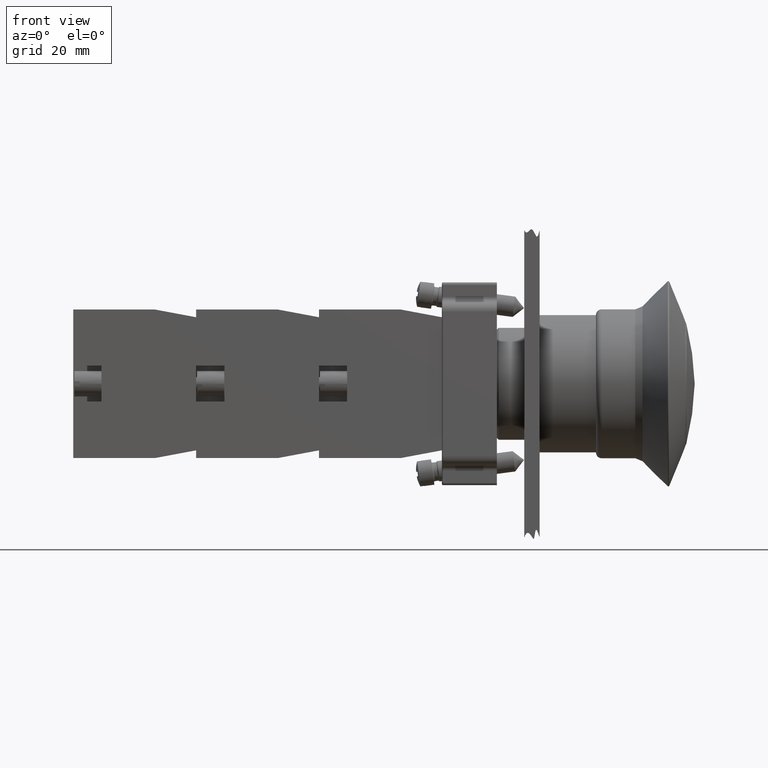
[diagram: clean part render]
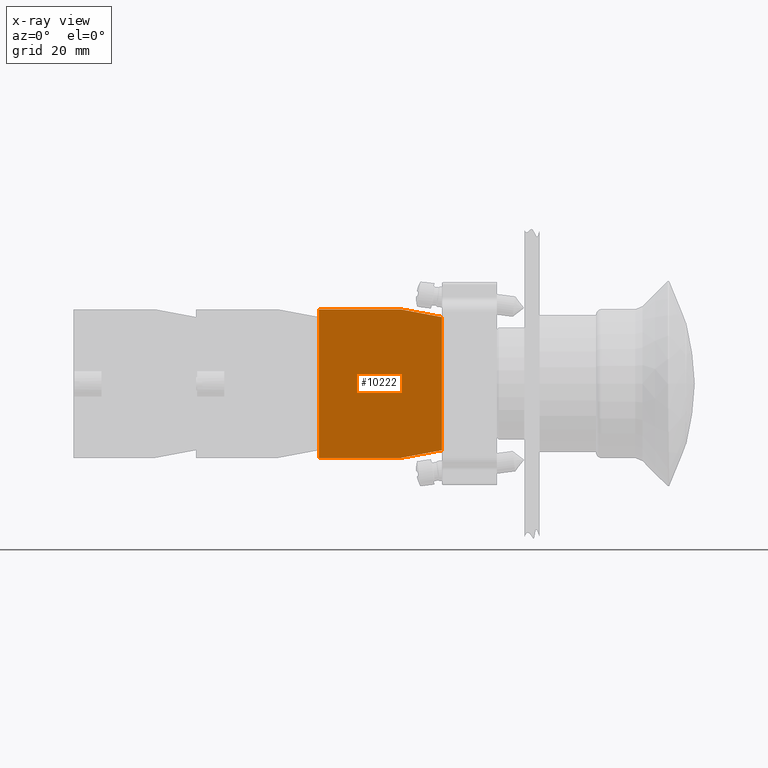
[diagram: x-ray — body ghosted, one internal face saturated and labeled with its STEP entity id]
A machine part, front view, then the same camera in x-ray: the body is ghosted and one INTERNAL B-rep face — a face not visible from any outside direction — is saturated and labeled: STEP entity #10222.
In plain terms, the highlighted planar face has unit normal (-0, 1, 0).
Its self-contained STEP definition (entity closure, byte-faithful):
#8527=CARTESIAN_POINT('',(-44.936741828918471,23.797073323279623,0.0));
#8528=VERTEX_POINT('',#8527);
#8535=CARTESIAN_POINT('',(-44.936741828918457,7.797073323279626,0.0));
#8536=VERTEX_POINT('',#8535);
#8537=CARTESIAN_POINT('',(-44.936741828918457,7.797073323279626,0.0));
#8538=DIRECTION('',(0.0,1.0,0.0));
#8539=VECTOR('',#8538,15.999999999999996);
#8540=LINE('',#8537,#8539);
#8541=EDGE_CURVE('',#8536,#8528,#8540,.T.);
#8718=CARTESIAN_POINT('',(-43.436741828918457,-0.202926676720380,0.0));
#8719=VERTEX_POINT('',#8718);
#8726=CARTESIAN_POINT('',(-17.436741828918457,-0.202926676720377,0.0));
#8727=VERTEX_POINT('',#8726);
#8728=CARTESIAN_POINT('',(-17.436741828918457,-0.202926676720377,0.0));
#8729=DIRECTION('',(-1.0,0.0,0.0));
#8730=VECTOR('',#8729,26.0);
#8731=LINE('',#8728,#8730);
#8732=EDGE_CURVE('',#8727,#8719,#8731,.T.);
#10076=CARTESIAN_POINT('',(-15.936741828918466,23.797073323279626,0.0));
#10077=VERTEX_POINT('',#10076);
#10084=CARTESIAN_POINT('',(-44.936741828918471,23.797073323279623,0.0));
#10085=DIRECTION('',(1.0,0.0,0.0));
#10086=VECTOR('',#10085,29.000000000000007);
#10087=LINE('',#10084,#10086);
#10088=EDGE_CURVE('',#8528,#10077,#10087,.T.);
#10124=CARTESIAN_POINT('',(-15.936741828918466,7.797073323279626,0.0));
#10125=VERTEX_POINT('',#10124);
#10132=CARTESIAN_POINT('',(-15.936741828918466,23.797073323279626,0.0));
#10133=DIRECTION('',(0.0,-1.0,0.0));
#10134=VECTOR('',#10133,16.0);
#10135=LINE('',#10132,#10134);
#10136=EDGE_CURVE('',#10077,#10125,#10135,.T.);
#10164=CARTESIAN_POINT('',(-15.936741828918466,7.797073323279626,0.0));
#10165=DIRECTION('',(-0.184288535050184,-0.982872186934322,0.0));
#10166=VECTOR('',#10165,8.139410298049855);
#10167=LINE('',#10164,#10166);
#10168=EDGE_CURVE('',#10125,#8727,#10167,.T.);
#10181=CARTESIAN_POINT('',(-43.436741828918457,-0.202926676720380,0.0));
#10182=DIRECTION('',(-0.184288535050185,0.982872186934322,0.0));
#10183=VECTOR('',#10182,8.139410298049860);
#10184=LINE('',#10181,#10183);
#10185=EDGE_CURVE('',#8719,#8536,#10184,.T.);
#10209=CARTESIAN_POINT('',(-30.436741828918464,12.124046801833057,0.0));
#10210=DIRECTION('',(0.0,0.0,1.0));
#10211=DIRECTION('',(1.0,0.0,0.0));
#10212=AXIS2_PLACEMENT_3D('',#10209,#10210,#10211);
#10213=PLANE('',#10212);
#10214=ORIENTED_EDGE('',*,*,#10088,.T.);
#10215=ORIENTED_EDGE('',*,*,#10136,.T.);
#10216=ORIENTED_EDGE('',*,*,#10168,.T.);
#10217=ORIENTED_EDGE('',*,*,#8732,.T.);
#10218=ORIENTED_EDGE('',*,*,#10185,.T.);
#10219=ORIENTED_EDGE('',*,*,#8541,.T.);
#10220=EDGE_LOOP('',(#10214,#10215,#10216,#10217,#10218,#10219));
#10221=FACE_OUTER_BOUND('',#10220,.T.);
#10222=ADVANCED_FACE('',(#10221),#10213,.F.);